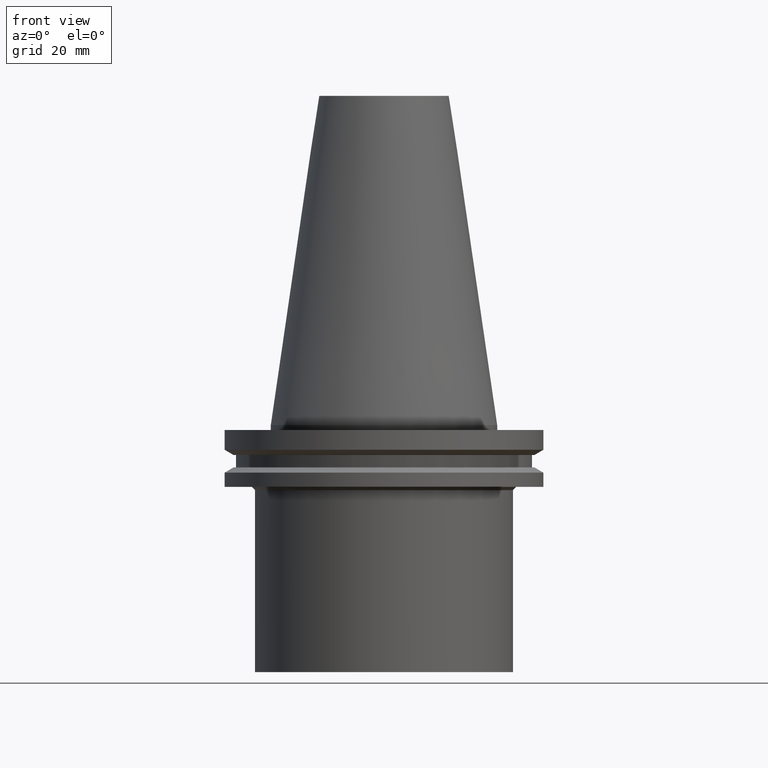
[diagram: clean part render]
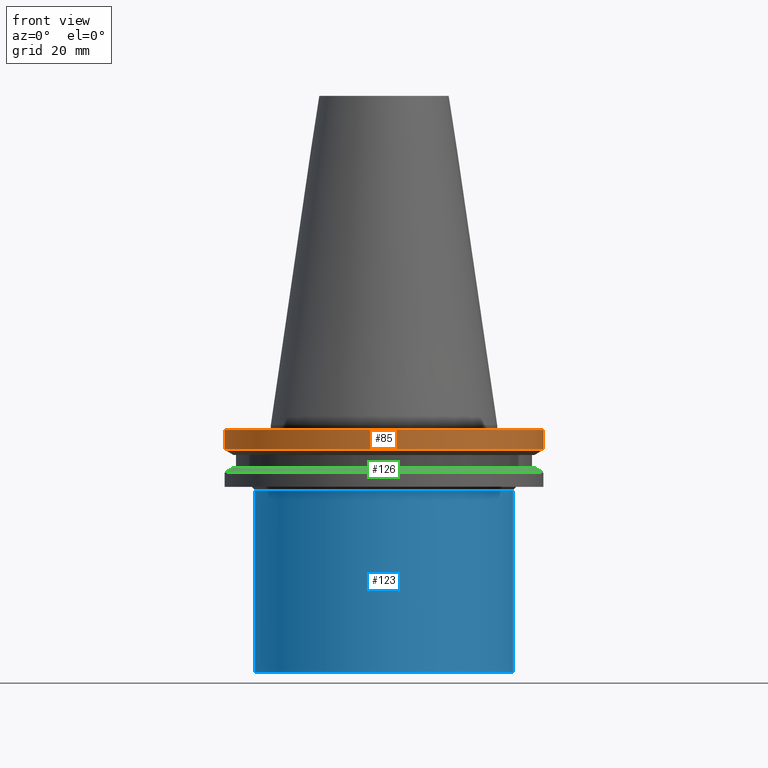
[diagram: same view with three faces highlighted in distinct colors, each labeled with its STEP entity id]
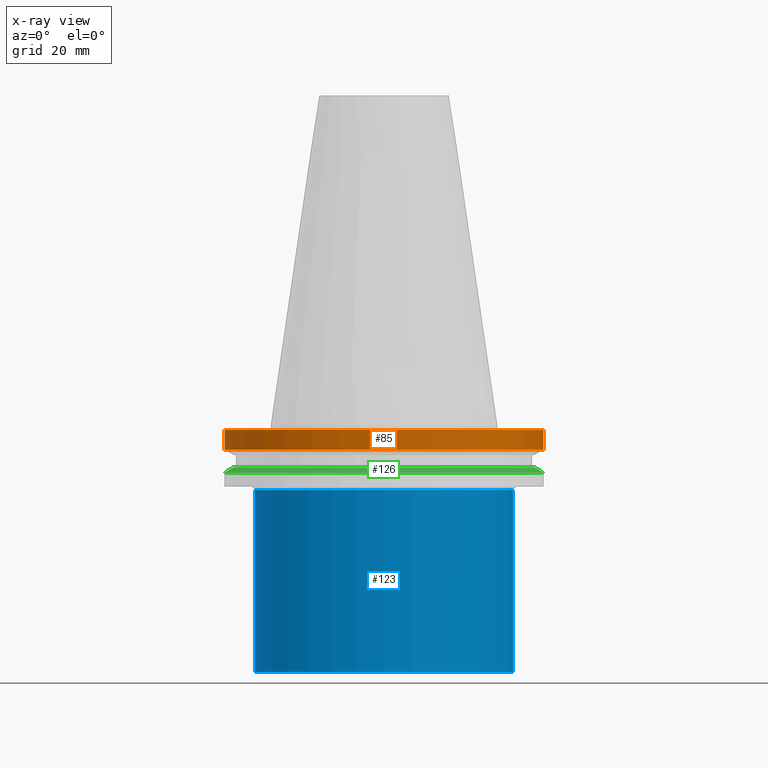
[diagram: x-ray of the same camera — body ghosted, the three highlighted faces saturated]
A machine part, front view with three faces highlighted in distinct colors.
The next image is the same camera in x-ray (body ghosted, the three faces saturated) — at least one of them is partly hidden behind the body in this view.
Their STEP definitions:

[orange] entity #85 — the highlighted cylindrical surface (bore or boss wall) has radius 49.2125 mm, axis along (0, 0, -1).
#85=ADVANCED_FACE('Unnamed[1]',(#192,#193),#194,.T.);
#104=EDGE_CURVE('Unnamed[1]',#223,#223,#224,.T.);
#114=EDGE_CURVE('Unnamed[1]',#239,#239,#240,.T.);
#192=FACE_BOUND('',#328,.T.);
#193=FACE_BOUND('',#329,.T.);
#194=CYLINDRICAL_SURFACE('',#330,49.2125);
#223=VERTEX_POINT('',#367);
#224=CIRCLE('',#368,49.2124999999999);
#239=VERTEX_POINT('',#387);
#240=CIRCLE('',#388,49.2125);
#328=EDGE_LOOP('',(#466));
#329=EDGE_LOOP('',(#467));
#330=AXIS2_PLACEMENT_3D('',#468,#469,#470);
#367=CARTESIAN_POINT('',(9.18485099360509E-017,49.2124999999999,-1.49999999999999));
#368=AXIS2_PLACEMENT_3D('',#501,#502,#503);
#387=CARTESIAN_POINT('',(4.65059621976208E-016,49.2125,-7.59500000000002));
#388=AXIS2_PLACEMENT_3D('',#519,#520,#521);
#466=ORIENTED_EDGE('',*,*,#114,.F.);
#467=ORIENTED_EDGE('',*,*,#104,.T.);
#468=CARTESIAN_POINT('',(2.78454065956132E-016,1.15077134331321E-014,-4.54750000000004));
#469=DIRECTION('',(6.12323399573677E-017,7.39044660191258E-016,-1.0));
#470=DIRECTION('',(-5.00805866072747E-032,1.0,7.39044660191258E-016));
#501=CARTESIAN_POINT('',(9.18485099360532E-017,9.25547483119916E-015,-1.50000000000003));
#502=DIRECTION('',(6.12323399573677E-017,7.39044660191258E-016,-1.0));
#503=DIRECTION('',(-5.00805866072748E-032,1.0,7.39044660191258E-016));
#519=CARTESIAN_POINT('',(4.65059621976211E-016,1.3759952035065E-014,-7.59500000000006));
#520=DIRECTION('',(6.12323399573677E-017,7.3904466019129E-016,-1.0));
#521=DIRECTION('',(-5.00805866072747E-032,1.0,7.3904466019129E-016));

[blue] entity #123 — the highlighted cylindrical surface (bore or boss wall) has radius 40 mm, axis along (0, 0, -1).
#78=EDGE_CURVE('Unnamed[1]',#182,#182,#183,.T.);
#80=EDGE_CURVE('Unnamed[1]',#185,#185,#186,.T.);
#123=ADVANCED_FACE('Unnamed[1]',(#252,#253),#254,.T.);
#182=VERTEX_POINT('',#315);
#183=CIRCLE('',#316,40.0);
#185=VERTEX_POINT('',#319);
#186=CIRCLE('',#320,40.0);
#252=FACE_BOUND('',#403,.T.);
#253=FACE_BOUND('',#404,.T.);
#254=CYLINDRICAL_SURFACE('',#405,40.0);
#315=CARTESIAN_POINT('',(1.22770841614523E-015,40.0,-20.0500000000001));
#316=AXIS2_PLACEMENT_3D('',#456,#457,#458);
#319=CARTESIAN_POINT('',(4.66590430475142E-015,40.0,-76.2));
#320=AXIS2_PLACEMENT_3D('',#459,#460,#461);
#403=EDGE_LOOP('',(#534));
#404=EDGE_LOOP('',(#535));
#405=AXIS2_PLACEMENT_3D('',#536,#537,#538);
#456=CARTESIAN_POINT('',(1.22770841614523E-015,2.29647532777473E-014,-20.0500000000001));
#457=DIRECTION('',(6.12323399573677E-017,7.39044660191285E-016,-1.0));
#458=DIRECTION('',(-5.00805866072802E-032,1.0,7.39044660191285E-016));
#459=CARTESIAN_POINT('',(4.66590430475142E-015,6.44621109474873E-014,-76.2));
#460=DIRECTION('',(6.12323399573677E-017,7.39044660191286E-016,-1.0));
#461=DIRECTION('',(-5.00805866072802E-032,1.0,7.39044660191286E-016));
#534=ORIENTED_EDGE('',*,*,#80,.F.);
#535=ORIENTED_EDGE('',*,*,#78,.T.);
#536=CARTESIAN_POINT('',(2.94680636044832E-015,4.37134321126173E-014,-48.1250000000001));
#537=DIRECTION('',(6.12323399573676E-017,7.39044660191286E-016,-1.0));
#538=DIRECTION('',(-5.0080586607278E-032,1.0,7.39044660191286E-016));

[green] entity #126 — the highlighted conical surface has half-angle 60 deg.
#100=EDGE_CURVE('Unnamed[1]',#217,#217,#218,.T.);
#102=EDGE_CURVE('Unnamed[1]',#220,#220,#221,.T.);
#126=ADVANCED_FACE('Unnamed[1]',(#257,#258),#259,.T.);
#217=VERTEX_POINT('',#359);
#218=CIRCLE('',#360,46.4325584538518);
#220=VERTEX_POINT('',#363);
#221=CIRCLE('',#364,49.2124999999999);
#257=FACE_BOUND('',#409,.T.);
#258=FACE_BOUND('',#410,.T.);
#259=CONICAL_SURFACE('',#411,47.8225292269259,1.04719755119659);
#359=CARTESIAN_POINT('',(7.98469713044071E-016,46.4325584538519,-13.04));
#360=AXIS2_PLACEMENT_3D('',#495,#496,#497);
#363=CARTESIAN_POINT('',(8.96747618675648E-016,49.2124999999999,-14.645));
#364=AXIS2_PLACEMENT_3D('',#498,#499,#500);
#409=EDGE_LOOP('',(#540));
#410=EDGE_LOOP('',(#541));
#411=AXIS2_PLACEMENT_3D('',#542,#543,#544);
#495=CARTESIAN_POINT('',(7.98469713044074E-016,1.77840502098064E-014,-13.04));
#496=DIRECTION('',(6.12323399573677E-017,7.39044660191264E-016,-1.0));
#497=DIRECTION('',(-5.00805866072765E-032,1.0,7.39044660191264E-016));
#498=CARTESIAN_POINT('',(8.9674761867565E-016,1.89702168894134E-014,-14.645));
#499=DIRECTION('',(6.12323399573677E-017,7.39044660191258E-016,-1.0));
#500=DIRECTION('',(-5.00805866072748E-032,1.0,7.39044660191259E-016));
#540=ORIENTED_EDGE('',*,*,#102,.F.);
#541=ORIENTED_EDGE('',*,*,#100,.T.);
#542=CARTESIAN_POINT('',(8.47608665859862E-016,1.83771335496099E-014,-13.8425));
#543=DIRECTION('',(6.12323399573677E-017,7.39044660191278E-016,-1.0));
#544=DIRECTION('',(-5.00805866072794E-032,1.0,7.39044660191278E-016));